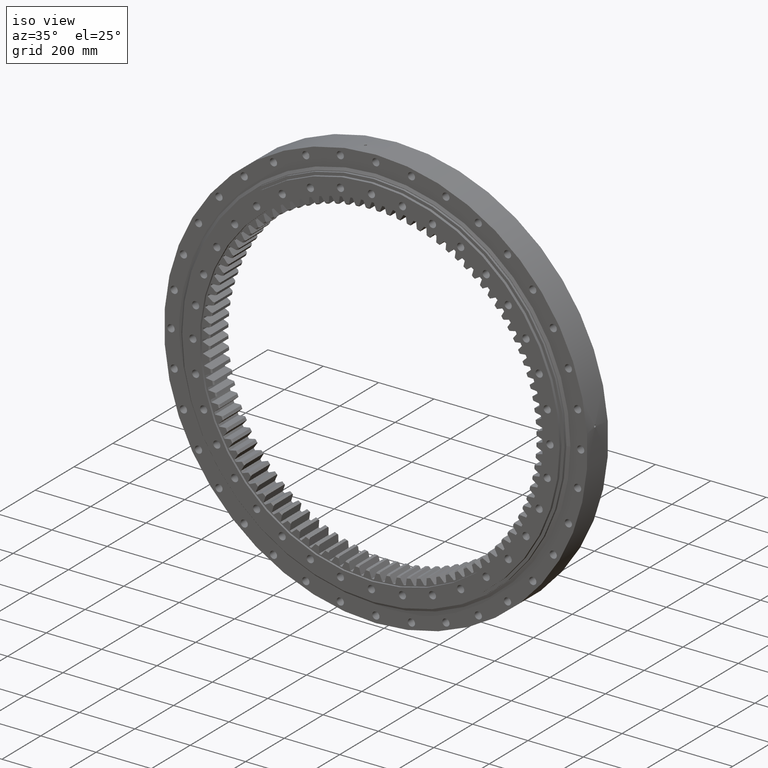
[diagram: clean part render]
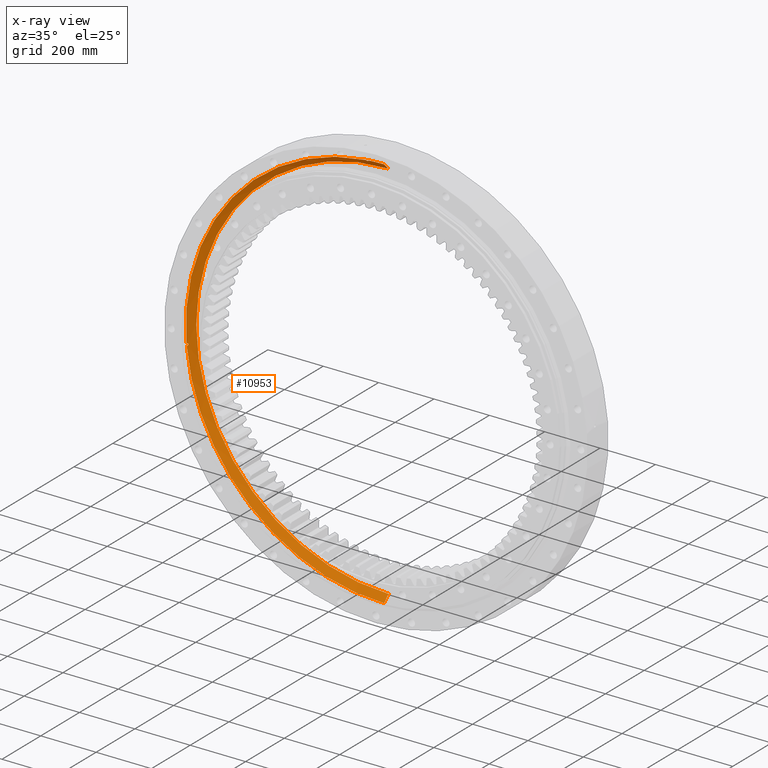
[diagram: x-ray — body ghosted, one internal face saturated and labeled with its STEP entity id]
A machine part, iso view, then the same camera in x-ray: the body is ghosted and one INTERNAL B-rep face — a face not visible from any outside direction — is saturated and labeled: STEP entity #10953.
In plain terms, the highlighted conical surface has half-angle 45 deg.
Its self-contained STEP definition (entity closure, byte-faithful):
#87 = CARTESIAN_POINT ( 'NONE',  ( 3.969305789094445200E-014, 0.7071067811865442400, 716.5416305603424700 ) ) ;
#458 = FACE_OUTER_BOUND ( 'NONE', #6682, .T. ) ;
#533 = CIRCLE ( 'NONE', #9134, 716.5416305603424700 ) ;
#552 = DIRECTION ( 'NONE',  ( 5.551115123125782700E-017, -3.495270772310837700E-017, 1.000000000000000000 ) ) ;
#564 = CIRCLE ( 'NONE', #25337, 694.2500000000001100 ) ;
#1109 = CARTESIAN_POINT ( 'NONE',  ( -61.34169214905548300, 4.433321610117057600, 710.1711319889050200 ) ) ;
#1400 = CARTESIAN_POINT ( 'NONE',  ( -713.4139155750598300, 0.7071067757851871000, -66.87670295159692600 ) ) ;
#1422 = CARTESIAN_POINT ( 'NONE',  ( -58.02233079921408200, 0.7071067757852895800, 714.1885727610331300 ) ) ;
#2337 = CARTESIAN_POINT ( 'NONE',  ( -714.1885727610329000, 0.7071067757851851000, -58.02233079921656200 ) ) ;
#2513 = LINE ( 'NONE', #27131, #19711 ) ;
#2671 = EDGE_CURVE ( 'NONE', #3849, #4150, #21167, .T. ) ;
#2791 = VERTEX_POINT ( 'NONE', #1422 ) ;
#3613 = DIRECTION ( 'NONE',  ( 1.173697223544192200E-016, -1.000000000000000000, -3.494217355385783800E-017 ) ) ;
#3774 = VERTEX_POINT ( 'NONE', #12346 ) ;
#3849 = VERTEX_POINT ( 'NONE', #10039 ) ;
#4150 = VERTEX_POINT ( 'NONE', #2337 ) ;
#4353 = DIRECTION ( 'NONE',  ( 1.173697223544192200E-016, -1.000000000000000000, -3.494217355385783800E-017 ) ) ;
#5234 = VERTEX_POINT ( 'NONE', #1400 ) ;
#5296 = CARTESIAN_POINT ( 'NONE',  ( -61.49598548695864500, 4.458441141289512200, 710.1325753998170300 ) ) ;
#5933 = VERTEX_POINT ( 'NONE', #23018 ) ;
#6067 = ORIENTED_EDGE ( 'NONE', *, *, #17404, .T. ) ;
#6178 = VECTOR ( 'NONE', #25870, 1000.000000000000000 ) ;
#6451 = CARTESIAN_POINT ( 'NONE',  ( -61.96077469045783900, 4.499907905493206100, 710.0505482213952700 ) ) ;
#6682 = EDGE_LOOP ( 'NONE', ( #17178, #26408, #27845, #17881, #6067, #8876, #12037, #20814 ) ) ;
#7664 = CARTESIAN_POINT ( 'NONE',  ( -710.0505482213948200, 4.499907905493153700, -61.96077469046025500 ) ) ;
#7821 = CARTESIAN_POINT ( 'NONE',  ( -710.0724703663988700, 4.491583706512377800, -61.80510823074584400 ) ) ;
#8351 = VERTEX_POINT ( 'NONE', #14401 ) ;
#8394 = DIRECTION ( 'NONE',  ( 5.551115123125782700E-017, -3.495270772310837700E-017, 1.000000000000000000 ) ) ;
#8423 = EDGE_CURVE ( 'NONE', #14010, #2791, #533, .T. ) ;
#8650 = CARTESIAN_POINT ( 'NONE',  ( -8.299292658279470100E-017, 0.7071067811865693300, 2.470784786933088100E-017 ) ) ;
#8876 = ORIENTED_EDGE ( 'NONE', *, *, #2671, .T. ) ;
#9134 = AXIS2_PLACEMENT_3D ( 'NONE', #8650, #3613, #552 ) ;
#9171 = DIRECTION ( 'NONE',  ( -4.285499050785220600E-017, -0.7071067811865453500, -0.7071067811865496800 ) ) ;
#9387 = CARTESIAN_POINT ( 'NONE',  ( -710.0091282592156900, 4.500181883274118300, -62.43108332907507200 ) ) ;
#9524 = CARTESIAN_POINT ( 'NONE',  ( -710.3069293740757100, 4.336223746673262300, -60.89671690964215900 ) ) ;
#9637 = CARTESIAN_POINT ( 'NONE',  ( -712.4204385959100100, 2.429013494119216100, -58.51817198905752800 ) ) ;
#9671 = CARTESIAN_POINT ( 'NONE',  ( -712.6379201017523400, 2.220942642758091600, -58.41192396987452200 ) ) ;
#9779 = CARTESIAN_POINT ( 'NONE',  ( -714.1885727610329000, 0.7071067757851851000, -58.02233079921656200 ) ) ;
#9841 = DIRECTION ( 'NONE',  ( 1.173697223544192200E-016, -1.000000000000000000, -3.494217355385783800E-017 ) ) ;
#10039 = CARTESIAN_POINT ( 'NONE',  ( -66.87670295159443900, 0.7071067757852351800, 713.4139155750601700 ) ) ;
#10318 = CARTESIAN_POINT ( 'NONE',  ( -61.80510823074344300, 4.491583706512430200, 710.0724703663993300 ) ) ;
#10953 = ADVANCED_FACE ( 'NONE', ( #458 ), #16228, .F. ) ;
#11771 = EDGE_CURVE ( 'NONE', #4150, #5234, #22826, .T. ) ;
#11998 = CARTESIAN_POINT ( 'NONE',  ( -8.299292658279470100E-017, 0.7071067811865693300, 2.470784786933088100E-017 ) ) ;
#12037 = ORIENTED_EDGE ( 'NONE', *, *, #11771, .T. ) ;
#12083 = DIRECTION ( 'NONE',  ( 5.551115123125782700E-017, -3.495270772310837700E-017, 1.000000000000000000 ) ) ;
#12264 = DIRECTION ( 'NONE',  ( 1.173697223544192200E-016, -1.000000000000000000, -3.494217355385783800E-017 ) ) ;
#12346 = CARTESIAN_POINT ( 'NONE',  ( -1.276100851762649000E-013, 0.7071067811865943100, -716.5416305603424700 ) ) ;
#12803 = CARTESIAN_POINT ( 'NONE',  ( -710.3449155244081800, 4.006342340152557700, -64.22528864727482300 ) ) ;
#13091 = CARTESIAN_POINT ( 'NONE',  ( -713.2939445749286700, 1.588278388495929900, -58.15225266239431800 ) ) ;
#13238 = CARTESIAN_POINT ( 'NONE',  ( -58.41192396987205600, 2.220942642758144500, 712.6379201017528000 ) ) ;
#13267 = CARTESIAN_POINT ( 'NONE',  ( -58.15225266239181000, 1.588278388495975500, 713.2939445749286700 ) ) ;
#13387 = CARTESIAN_POINT ( 'NONE',  ( -710.0895658235359600, 4.337428764085149900, -63.36745216053184000 ) ) ;
#13454 = CARTESIAN_POINT ( 'NONE',  ( -710.0149795701722700, 4.466062874699863600, -62.75317835158259100 ) ) ;
#13500 = CARTESIAN_POINT ( 'NONE',  ( -58.91328776962445300, 3.017784441729082400, 711.7971003575252100 ) ) ;
#13588 = CARTESIAN_POINT ( 'NONE',  ( -58.76869066176081400, 2.826780035602013600, 712.0006982156527300 ) ) ;
#13594 = CARTESIAN_POINT ( 'NONE',  ( -58.51817198905507000, 2.429013494119267600, 712.4204385959103500 ) ) ;
#13788 = EDGE_CURVE ( 'NONE', #5933, #14010, #23386, .T. ) ;
#13830 = CARTESIAN_POINT ( 'NONE',  ( -58.02233079921408200, 0.7071067757852895800, 714.1885727610331300 ) ) ;
#14010 = VERTEX_POINT ( 'NONE', #21053 ) ;
#14401 = CARTESIAN_POINT ( 'NONE',  ( -1.274885981299828800E-013, 22.99873734152879500, -694.2500000000001100 ) ) ;
#14666 = CARTESIAN_POINT ( 'NONE',  ( -66.87670295159443900, 0.7071067757852351800, 713.4139155750601700 ) ) ;
#14725 = CARTESIAN_POINT ( 'NONE',  ( -66.82189030620203600, 0.9303058378033410800, 713.1948762103608000 ) ) ;
#14763 = CARTESIAN_POINT ( 'NONE',  ( -66.75007330454700100, 1.152541074778036200, 712.9783970709057700 ) ) ;
#14947 = CARTESIAN_POINT ( 'NONE',  ( -58.05421345148387500, 1.153426352618035700, 713.7381924617650400 ) ) ;
#15769 = CARTESIAN_POINT ( 'NONE',  ( -710.7335404484825900, 3.552018386692371800, -64.96839986440878100 ) ) ;
#15972 = B_SPLINE_CURVE_WITH_KNOTS ( 'NONE', 3,
 ( #13830, #14947, #13267, #13238, #13594, #13588, #13500, #25893, #25803, #25798, #26040, #26006, #25936, #1109, #5296, #10318, #6451, #27479, #26009, #25455, #25423, #25388, #25543, #25513, #25505, #27033, #22433, #23021, #22426, #26586, #27490, #14763, #14725, #14666 ),
 .UNSPECIFIED., .F., .F.,
 ( 4, 2, 2, 2, 2, 2, 2, 2, 2, 2, 2, 2, 2, 2, 2, 2, 4 ),
 ( 2.818852246670222800E-007, 0.001887503699436283000, 0.002831114606542093500, 0.003774725513647903800, 0.004718336420753714900, 0.005661947327859524800, 0.006605558234965334600, 0.007077363688518192700, 0.007549169142071050800, 0.008492780049176765200, 0.009436390956282481400, 0.01038000186338819800, 0.01132361277049391400, 0.01226722367759962800, 0.01321083458470534400, 0.01415444549181106100, 0.01509805639891677700 ),
 .UNSPECIFIED. ) ;
#16228 = CONICAL_SURFACE ( 'NONE', #26211, 716.5416305603424700, 0.7853981633974513900 ) ;
#16696 = CARTESIAN_POINT ( 'NONE',  ( -710.4624535290280400, 3.865711443905761600, -64.48639869647161000 ) ) ;
#16902 = CARTESIAN_POINT ( 'NONE',  ( -710.1585727401587700, 4.241985305090203400, -63.66712416245205500 ) ) ;
#16970 = CARTESIAN_POINT ( 'NONE',  ( -712.0006982156523900, 2.826780035601959000, -58.76869066176330100 ) ) ;
#17178 = ORIENTED_EDGE ( 'NONE', *, *, #20828, .F. ) ;
#17252 = EDGE_CURVE ( 'NONE', #5234, #3774, #25387, .T. ) ;
#17282 = DIRECTION ( 'NONE',  ( 5.551115123125782700E-017, -3.495270772310837700E-017, 1.000000000000000000 ) ) ;
#17316 = DIRECTION ( 'NONE',  ( 1.173697223544192200E-016, -1.000000000000000000, -3.494217355385783800E-017 ) ) ;
#17347 = CARTESIAN_POINT ( 'NONE',  ( -8.299292658279470100E-017, 0.7071067811865693300, 2.470784786933088100E-017 ) ) ;
#17404 = EDGE_CURVE ( 'NONE', #2791, #3849, #15972, .T. ) ;
#17496 = CARTESIAN_POINT ( 'NONE',  ( -710.1711319889047900, 4.433321610116993700, -61.34169214905786300 ) ) ;
#17802 = CARTESIAN_POINT ( 'NONE',  ( -2.699355416277445200E-015, 22.99873734152877000, 8.036258717072893100E-016 ) ) ;
#17881 = ORIENTED_EDGE ( 'NONE', *, *, #8423, .T. ) ;
#19294 = CARTESIAN_POINT ( 'NONE',  ( -713.7381924617645800, 1.153426352617989500, -58.05421345148636200 ) ) ;
#19711 = VECTOR ( 'NONE', #9171, 1000.000000000000000 ) ;
#19866 = AXIS2_PLACEMENT_3D ( 'NONE', #11998, #12264, #12083 ) ;
#19873 = CARTESIAN_POINT ( 'NONE',  ( -713.4139155750598300, 0.7071067757851871000, -66.87670295159692600 ) ) ;
#20073 = DIRECTION ( 'NONE',  ( 5.551115123125782700E-017, -3.498182018534432000E-017, 1.000000000000000000 ) ) ;
#20085 = CARTESIAN_POINT ( 'NONE',  ( -8.299292658279470100E-017, 0.7071067811865693300, 2.470784786933088100E-017 ) ) ;
#20208 = CARTESIAN_POINT ( 'NONE',  ( -710.4247134867922600, 4.242530342857731900, -60.61890330436771300 ) ) ;
#20777 = CARTESIAN_POINT ( 'NONE',  ( -711.2145664345036900, 3.554703117163143100, -59.43960032058252100 ) ) ;
#20814 = ORIENTED_EDGE ( 'NONE', *, *, #17252, .T. ) ;
#20828 = EDGE_CURVE ( 'NONE', #8351, #3774, #2513, .T. ) ;
#20957 = CARTESIAN_POINT ( 'NONE',  ( -710.8667862938118600, 3.865773330231055700, -59.86415115319178400 ) ) ;
#21053 = CARTESIAN_POINT ( 'NONE',  ( 3.977605081721483800E-014, 0.7071067811865442400, 716.5416305603423600 ) ) ;
#21067 = CARTESIAN_POINT ( 'NONE',  ( -710.7073362757087100, 4.005026804036104300, -60.09780808948696800 ) ) ;
#21167 = CIRCLE ( 'NONE', #19866, 716.5416305603424700 ) ;
#21201 = CARTESIAN_POINT ( 'NONE',  ( -710.1325753998169100, 4.458441141289454500, -61.49598548696107500 ) ) ;
#21645 = CARTESIAN_POINT ( 'NONE',  ( -711.7971003575249800, 3.017784441729072700, -58.91328776962701100 ) ) ;
#21819 = CARTESIAN_POINT ( 'NONE',  ( -711.4045924007834900, 3.381263007828235500, -59.24787165547209600 ) ) ;
#22426 = CARTESIAN_POINT ( 'NONE',  ( -66.22388427062138300, 2.220600792111767000, 711.9548046802218600 ) ) ;
#22433 = CARTESIAN_POINT ( 'NONE',  ( -65.76294150474673500, 2.825547555479595500, 711.3900125624110200 ) ) ;
#22826 = B_SPLINE_CURVE_WITH_KNOTS ( 'NONE', 3,
 ( #9779, #19294, #13091, #9671, #9637, #16970, #21645, #21819, #20777, #20957, #21067, #20208, #9524, #17496, #21201, #7821, #7664, #9387, #13454, #13387, #16902, #12803, #16696, #15769, #23522, #24413, #24482, #24021, #24058, #24226, #24501, #27926, #24322, #19873 ),
 .UNSPECIFIED., .F., .F.,
 ( 4, 2, 2, 2, 2, 2, 2, 2, 2, 2, 2, 2, 2, 2, 2, 2, 4 ),
 ( 2.818852246272619700E-007, 0.001887503699435959500, 0.002831114606541627700, 0.003774725513647296600, 0.004718336420752965500, 0.005661947327858634000, 0.006605558234964302400, 0.007077363688517183900, 0.007549169142070067200, 0.008492780049175880500, 0.009436390956281693800, 0.01038000186338750900, 0.01132361277049332000, 0.01226722367759913400, 0.01321083458470494700, 0.01415444549181076200, 0.01509805639891657500 ),
 .UNSPECIFIED. ) ;
#23000 = AXIS2_PLACEMENT_3D ( 'NONE', #17347, #17316, #17282 ) ;
#23018 = CARTESIAN_POINT ( 'NONE',  ( 3.583926132602331500E-014, 22.99873734152874500, 694.2500000000001100 ) ) ;
#23021 = CARTESIAN_POINT ( 'NONE',  ( -66.08388773828082200, 2.425630495760749700, 711.7619083702510400 ) ) ;
#23386 = LINE ( 'NONE', #87, #6178 ) ;
#23522 = CARTESIAN_POINT ( 'NONE',  ( -710.8846994949778900, 3.381653303272837100, -65.18581922786100300 ) ) ;
#24021 = CARTESIAN_POINT ( 'NONE',  ( -711.7619083702506900, 2.425630495760713800, -66.08388773828330900 ) ) ;
#24058 = CARTESIAN_POINT ( 'NONE',  ( -711.9548046802216300, 2.220600792111933500, -66.22388427062374200 ) ) ;
#24226 = CARTESIAN_POINT ( 'NONE',  ( -712.3525596663305400, 1.801851698920967600, -66.46869646942123200 ) ) ;
#24322 = CARTESIAN_POINT ( 'NONE',  ( -713.1948762103603500, 0.9303058378033796100, -66.82189030620446600 ) ) ;
#24413 = CARTESIAN_POINT ( 'NONE',  ( -711.2122467459034900, 3.019148140195054200, -65.58261584094410100 ) ) ;
#24482 = CARTESIAN_POINT ( 'NONE',  ( -711.3900125624109000, 2.825547555479559000, -65.76294150474923600 ) ) ;
#24501 = CARTESIAN_POINT ( 'NONE',  ( -712.5574367595040700, 1.588118585199426800, -66.57345736604952400 ) ) ;
#24704 = EDGE_CURVE ( 'NONE', #5933, #8351, #564, .T. ) ;
#25337 = AXIS2_PLACEMENT_3D ( 'NONE', #17802, #4353, #20073 ) ;
#25387 = CIRCLE ( 'NONE', #23000, 716.5416305603424700 ) ;
#25388 = CARTESIAN_POINT ( 'NONE',  ( -64.22528864727245000, 4.006342340152558600, 710.3449155244080700 ) ) ;
#25423 = CARTESIAN_POINT ( 'NONE',  ( -63.66712416244968200, 4.241985305090215900, 710.1585727401587700 ) ) ;
#25455 = CARTESIAN_POINT ( 'NONE',  ( -63.36745216052943900, 4.337428764085175600, 710.0895658235360800 ) ) ;
#25505 = CARTESIAN_POINT ( 'NONE',  ( -65.18581922785861600, 3.381653303272844600, 710.8846994949783500 ) ) ;
#25513 = CARTESIAN_POINT ( 'NONE',  ( -64.96839986440635100, 3.552018386692400700, 710.7335404484828100 ) ) ;
#25543 = CARTESIAN_POINT ( 'NONE',  ( -64.48639869646913800, 3.865711443905791400, 710.4624535290279300 ) ) ;
#25798 = CARTESIAN_POINT ( 'NONE',  ( -59.86415115318936100, 3.865773330231141900, 710.8667862938119700 ) ) ;
#25803 = CARTESIAN_POINT ( 'NONE',  ( -59.43960032058007700, 3.554703117163230600, 711.2145664345039200 ) ) ;
#25870 = DIRECTION ( 'NONE',  ( 1.222452380498863700E-016, -0.7071067811865453500, 0.7071067811865496800 ) ) ;
#25893 = CARTESIAN_POINT ( 'NONE',  ( -59.24787165546957400, 3.381263007828253700, 711.4045924007838300 ) ) ;
#25936 = CARTESIAN_POINT ( 'NONE',  ( -60.89671690963975000, 4.336223746673331500, 710.3069293740760500 ) ) ;
#26006 = CARTESIAN_POINT ( 'NONE',  ( -60.61890330436530400, 4.242530342857807400, 710.4247134867924800 ) ) ;
#26009 = CARTESIAN_POINT ( 'NONE',  ( -62.75317835158021800, 4.466062874699900900, 710.0149795701723900 ) ) ;
#26040 = CARTESIAN_POINT ( 'NONE',  ( -60.09780808948453800, 4.005026804036186900, 710.7073362757089400 ) ) ;
#26211 = AXIS2_PLACEMENT_3D ( 'NONE', #20085, #9841, #8394 ) ;
#26408 = ORIENTED_EDGE ( 'NONE', *, *, #24704, .F. ) ;
#26586 = CARTESIAN_POINT ( 'NONE',  ( -66.46869646941883000, 1.801851698920793100, 712.3525596663306500 ) ) ;
#27033 = CARTESIAN_POINT ( 'NONE',  ( -65.58261584094165600, 3.019148140195056000, 711.2122467459037100 ) ) ;
#27131 = CARTESIAN_POINT ( 'NONE',  ( -1.276100851762649000E-013, 0.7071067811865943100, -716.5416305603424700 ) ) ;
#27479 = CARTESIAN_POINT ( 'NONE',  ( -62.43108332907266300, 4.500181883274161800, 710.0091282592153400 ) ) ;
#27490 = CARTESIAN_POINT ( 'NONE',  ( -66.57345736604708000, 1.588118585199370900, 712.5574367595043000 ) ) ;
#27845 = ORIENTED_EDGE ( 'NONE', *, *, #13788, .T. ) ;
#27926 = CARTESIAN_POINT ( 'NONE',  ( -712.9783970709056600, 1.152541074778097100, -66.75007330454947400 ) ) ;